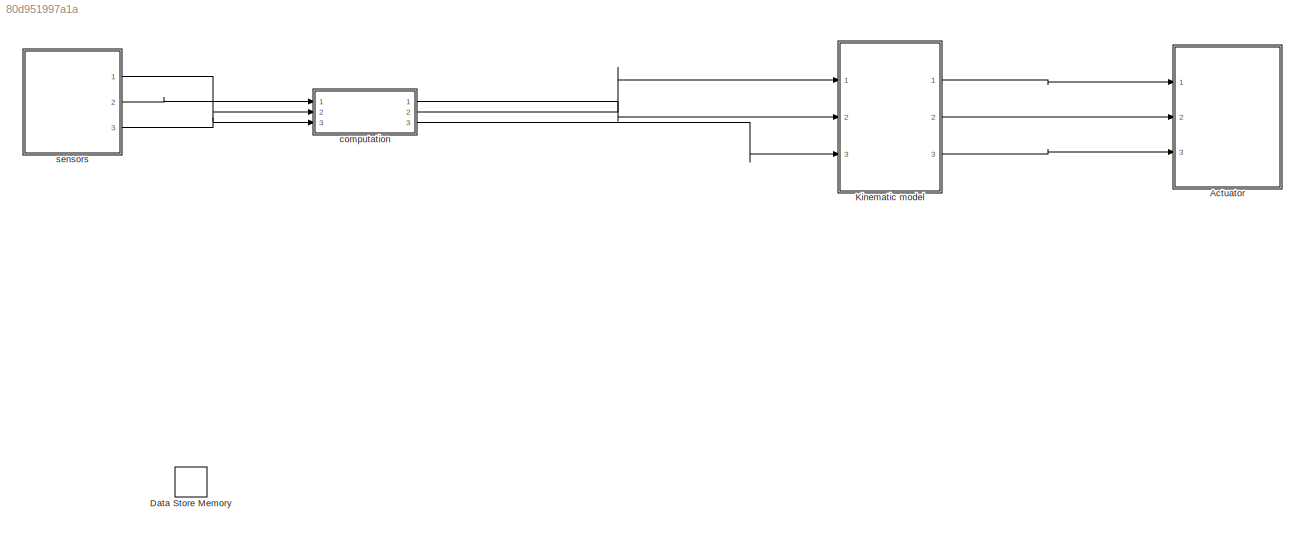
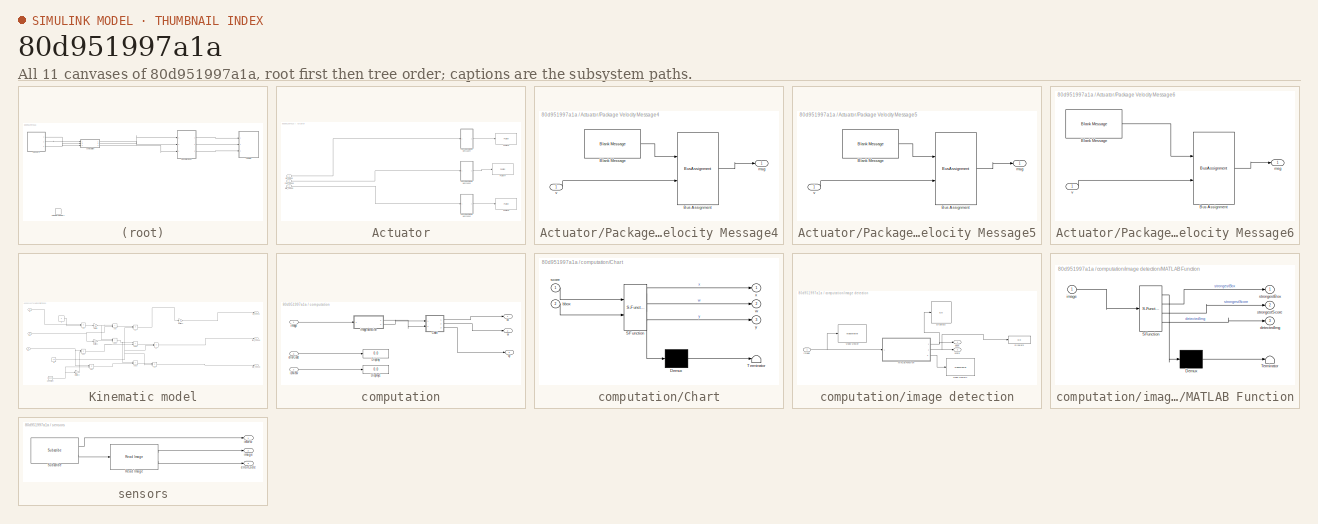
[diagram: thumbnail index - all 11 canvases of the model, root first then tree order]
MODEL slx_80d951997a1a
KIND model
CONFIG AbsTol = auto
CONFIG EnableMultiTasking = off
CONFIG FixedStep = auto
CONFIG MaxStep = auto
CONFIG MinStep = auto
CONFIG RelTol = 1e-3
CONFIG SampleTimeConstraint = Unconstrained
CONFIG Solver = FixedStepDiscrete
CONFIG SolverName = FixedStepDiscrete
CONFIG StartTime = 0.0
CONFIG StopTime = inf
WORKSPACE source: mxarray member
WORKSPACE SL_ROS_VariableLengthArrays_MaxSizes: object (value not decoded)
BLOCK [SubSystem] Actuator
  Ports = [3]
  RequestExecContextInheritance = off
BLOCK [SubSystem] Actuator/Package Velocity Message4
  Ports = [1, 1]
  RequestExecContextInheritance = off
BLOCK [Reference] Actuator/Package Velocity Message4/Blank Message  REF=robotlib/Blank Message
  Ports = [0, 1]
  SourceBlock = robotlib/Blank Message
  SourceProductBaseCode = RR
  SourceType = ROS Blank Message
BLOCK [BusAssignment] Actuator/Package Velocity Message4/Bus Assignment
  AssignedSignals = Data
  Ports = [2, 1]
BLOCK [Outport] Actuator/Package Velocity Message4/msg
  VectorParamsAs1DForOutWhenUnconnected = off
BLOCK [Inport] Actuator/Package Velocity Message4/v
BLOCK [SubSystem] Actuator/Package Velocity Message5
  Ports = [1, 1]
  RequestExecContextInheritance = off
BLOCK [Reference] Actuator/Package Velocity Message5/Blank Message  REF=robotlib/Blank Message
  Ports = [0, 1]
  SourceBlock = robotlib/Blank Message
  SourceProductBaseCode = RR
  SourceType = ROS Blank Message
BLOCK [BusAssignment] Actuator/Package Velocity Message5/Bus Assignment
  AssignedSignals = Data
  Ports = [2, 1]
BLOCK [Outport] Actuator/Package Velocity Message5/msg
  VectorParamsAs1DForOutWhenUnconnected = off
BLOCK [Inport] Actuator/Package Velocity Message5/v
BLOCK [SubSystem] Actuator/Package Velocity Message6
  Ports = [1, 1]
  RequestExecContextInheritance = off
BLOCK [Reference] Actuator/Package Velocity Message6/Blank Message  REF=robotlib/Blank Message
  Ports = [0, 1]
  SourceBlock = robotlib/Blank Message
  SourceProductBaseCode = RR
  SourceType = ROS Blank Message
BLOCK [BusAssignment] Actuator/Package Velocity Message6/Bus Assignment
  AssignedSignals = Data
  Ports = [2, 1]
BLOCK [Outport] Actuator/Package Velocity Message6/msg
  VectorParamsAs1DForOutWhenUnconnected = off
BLOCK [Inport] Actuator/Package Velocity Message6/v
BLOCK [Reference] Actuator/Publish4  REF=robotlib/Publish
  Ports = [1]
  SourceBlock = robotlib/Publish
  SourceProductBaseCode = RR
  SourceType = ROS Publish
BLOCK [Reference] Actuator/Publish5  REF=robotlib/Publish
  Ports = [1]
  SourceBlock = robotlib/Publish
  SourceProductBaseCode = RR
  SourceType = ROS Publish
BLOCK [Reference] Actuator/Publish6  REF=robotlib/Publish
  Ports = [1]
  SourceBlock = robotlib/Publish
  SourceProductBaseCode = RR
  SourceType = ROS Publish
BLOCK [Inport] Actuator/left2_speed
  Port = 3
BLOCK [Inport] Actuator/left_speed
BLOCK [Inport] Actuator/right_speed
  Port = 2
BLOCK [DataStoreMemory] Data Store Memory
  DataStoreName = sign
  ReadBeforeWriteMsg = warning
  ShowAdditionalParam = off
  WriteAfterReadMsg = warning
  WriteAfterWriteMsg = warning
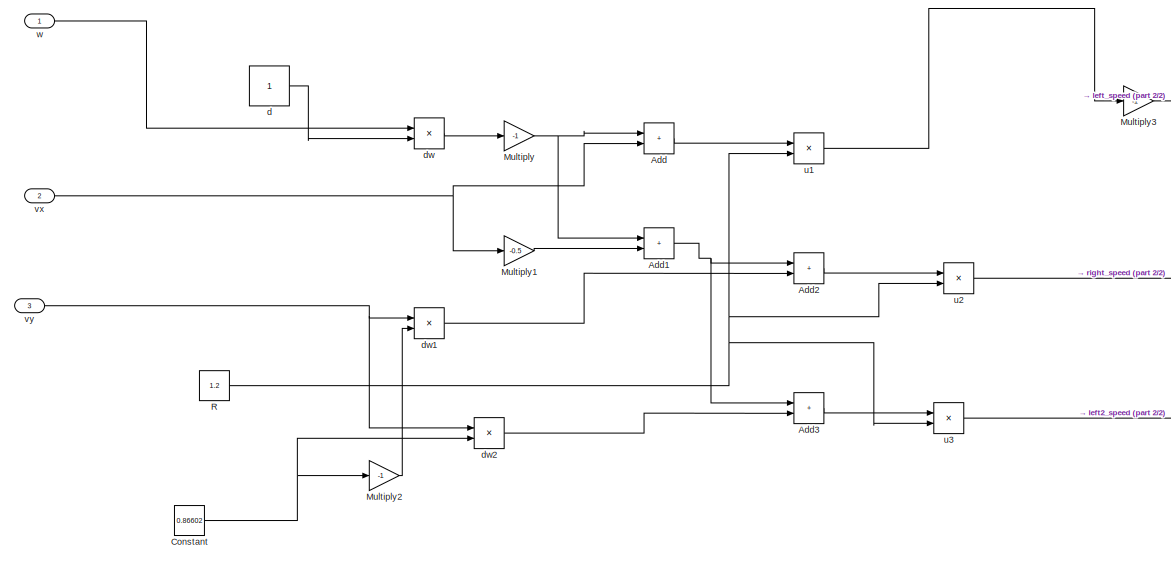
[diagram: Kinematic model - part 1/2, center side, full height]
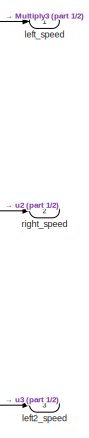
[diagram: Kinematic model - part 2/2, middle right region]
BLOCK [SubSystem] Kinematic model
  Ports = [3, 3]
  RequestExecContextInheritance = off
BLOCK [Sum] Kinematic model/Add
  IconShape = rectangular
  Ports = [2, 1]
BLOCK [Sum] Kinematic model/Add1
  IconShape = rectangular
  Ports = [2, 1]
BLOCK [Sum] Kinematic model/Add2
  IconShape = rectangular
  Ports = [2, 1]
BLOCK [Sum] Kinematic model/Add3
  IconShape = rectangular
  Ports = [2, 1]
BLOCK [Constant] Kinematic model/Constant
  Value = 0.86602
BLOCK [Gain] Kinematic model/Multiply
  Gain = -1
BLOCK [Gain] Kinematic model/Multiply1
  Gain = -0.5
BLOCK [Gain] Kinematic model/Multiply2
  Gain = -1
BLOCK [Gain] Kinematic model/Multiply3
  Gain = -1
BLOCK [Constant] Kinematic model/R
  Value = 1.2
BLOCK [Constant] Kinematic model/d
  SampleTime = -1
  VectorParams1D = off
BLOCK [Product] Kinematic model/dw
  Ports = [2, 1]
BLOCK [Product] Kinematic model/dw1
  Ports = [2, 1]
BLOCK [Product] Kinematic model/dw2
  Ports = [2, 1]
BLOCK [Outport] Kinematic model/left2_speed
  Port = 3
BLOCK [Outport] Kinematic model/left_speed
BLOCK [Outport] Kinematic model/right_speed
  Port = 2
BLOCK [Product] Kinematic model/u1
  Inputs = */
  Ports = [2, 1]
BLOCK [Product] Kinematic model/u2
  Inputs = */
  Ports = [2, 1]
BLOCK [Product] Kinematic model/u3
  Inputs = */
  Ports = [2, 1]
BLOCK [Inport] Kinematic model/vx
  Port = 2
BLOCK [Inport] Kinematic model/vy
  Port = 3
BLOCK [Inport] Kinematic model/w
BLOCK [SubSystem] computation
  Ports = [3, 3]
  RequestExecContextInheritance = off
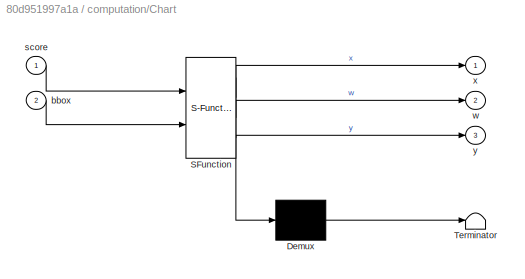
BLOCK [SubSystem] computation/Chart
  ErrorFcn = Stateflow.Translate.translate
  PermitHierarchicalResolution = ExplicitOnly
  Ports = [2, 3]
  RequestExecContextInheritance = off
  SFBlockType = Chart
  TreatAsAtomicUnit = on
BLOCK [Demux] computation/Chart/ Demux 
  Outputs = 1
  Ports = [1, 1]
BLOCK [S-Function] computation/Chart/ SFunction 
  EnableBusSupport = on
  FunctionName = sf_sfun
  PortCounts = [2 4]
  Ports = [2, 4]
  SFcnIsStateOwnerBlock = off
  SFunctionDeploymentMode = off
  Tag = Stateflow S-Function 3
BLOCK [Terminator] computation/Chart/ Terminator 
BLOCK [Inport] computation/Chart/bbox
  Port = 2
BLOCK [Inport] computation/Chart/score
BLOCK [Outport] computation/Chart/w
  Port = 2
BLOCK [Outport] computation/Chart/x
BLOCK [Outport] computation/Chart/y
  Port = 3
BLOCK [Display] computation/Display
  Decimation = 1
  Ports = [1]
BLOCK [Display] computation/Display1
  Decimation = 1
  Ports = [1]
BLOCK [Inport] computation/errorCode
  Port = 3
BLOCK [Inport] computation/image
BLOCK [SubSystem] computation/image detection
  Ports = [1, 2]
  RequestExecContextInheritance = off
BLOCK [Display] computation/image detection/Display2
  Decimation = 1
  Ports = [1]
BLOCK [Display] computation/image detection/Display3
  Decimation = 1
  Ports = [1]
BLOCK [SubSystem] computation/image detection/MATLAB Function
  ErrorFcn = Stateflow.Translate.translate
  PermitHierarchicalResolution = ExplicitOnly
  Ports = [1, 3]
  RequestExecContextInheritance = off
  SFBlockType = MATLAB Function
  TreatAsAtomicUnit = on
BLOCK [Demux] computation/image detection/MATLAB Function/ Demux 
  Outputs = 1
  Ports = [1, 1]
BLOCK [S-Function] computation/image detection/MATLAB Function/ SFunction 
  EnableBusSupport = on
  FunctionName = sf_sfun
  PortCounts = [1 4]
  Ports = [1, 4]
  SFcnIsStateOwnerBlock = off
  SFunctionDeploymentMode = off
  Tag = Stateflow S-Function 2
BLOCK [Terminator] computation/image detection/MATLAB Function/ Terminator 
BLOCK [Outport] computation/image detection/MATLAB Function/detectedImg
  Port = 3
BLOCK [Inport] computation/image detection/MATLAB Function/image
BLOCK [Outport] computation/image detection/MATLAB Function/strongestBox
BLOCK [Outport] computation/image detection/MATLAB Function/strongestScore
  Port = 2
BLOCK [VideoViewer] computation/image detection/Video Viewer
  FigPos = [191 900 448 283]
  Ports = [1]
  ScopeSpecificationString = vipscopes.VideoViewerScopeCfg('CurrentConfiguration', extmgr.ConfigurationSet(extmgr.Configuration('Core','General UI',true),extmgr.Configuration('Core','Source UI',true),extmgr.Configuration('Sources','WiredSimulink',true),extmgr.Configuration('Sources','File',false),extmgr.Configuration('Sources','Workspace',false),extmgr.Configuration('Sources','Streaming',false),extmgr.Configuration('Sources',...<+1712ch>
  colormapValue = gray(256)
BLOCK [VideoViewer] computation/image detection/Video Viewer1
  FigPos = [147 535 428 297]
  Ports = [1]
  ScopeSpecificationString = vipscopes.VideoViewerScopeCfg('CurrentConfiguration', extmgr.ConfigurationSet(extmgr.Configuration('Core','General UI',true),extmgr.Configuration('Core','Source UI',true),extmgr.Configuration('Sources','WiredSimulink',true),extmgr.Configuration('Sources','File',false),extmgr.Configuration('Sources','Workspace',false),extmgr.Configuration('Sources','Streaming',false),extmgr.Configuration('Sources',...<+1712ch>
  colormapValue = gray(256)
BLOCK [Outport] computation/image detection/bbox
BLOCK [Inport] computation/image detection/image
BLOCK [Outport] computation/image detection/score
  Port = 2
BLOCK [Inport] computation/isNiew
  Port = 2
BLOCK [Outport] computation/vx
BLOCK [Outport] computation/vy
  Port = 3
BLOCK [Outport] computation/w
  Port = 2
BLOCK [SubSystem] sensors
  Ports = [0, 3]
  RequestExecContextInheritance = off
BLOCK [Reference] sensors/Read Image  REF=robotlib/Read Image
  Ports = [1, 2]
  SourceBlock = robotlib/Read Image
  SourceProductBaseCode = RR
  SourceType = ros.slros.internal.block.ReadImage
BLOCK [Reference] sensors/Subscribe  REF=robotlib/Subscribe
  Ports = [0, 2]
  SourceBlock = robotlib/Subscribe
  SourceProductBaseCode = RR
  SourceType = ROS Subscribe
BLOCK [Outport] sensors/errorCode
  Port = 3
BLOCK [Outport] sensors/image
  Port = 2
BLOCK [Outport] sensors/isNew
LINE Actuator/Package Velocity Message4/Blank Message:1 -> Actuator/Package Velocity Message4/Bus Assignment:1
LINE Actuator/Package Velocity Message4/Bus Assignment:1 -> Actuator/Package Velocity Message4/msg:1
LINE Actuator/Package Velocity Message4/v:1 -> Actuator/Package Velocity Message4/Bus Assignment:2
LINE Actuator/Package Velocity Message4:1 -> Actuator/Publish5:1
LINE Actuator/Package Velocity Message5/Blank Message:1 -> Actuator/Package Velocity Message5/Bus Assignment:1
LINE Actuator/Package Velocity Message5/Bus Assignment:1 -> Actuator/Package Velocity Message5/msg:1
LINE Actuator/Package Velocity Message5/v:1 -> Actuator/Package Velocity Message5/Bus Assignment:2
LINE Actuator/Package Velocity Message5:1 -> Actuator/Publish4:1
LINE Actuator/Package Velocity Message6/Blank Message:1 -> Actuator/Package Velocity Message6/Bus Assignment:1
LINE Actuator/Package Velocity Message6/Bus Assignment:1 -> Actuator/Package Velocity Message6/msg:1
LINE Actuator/Package Velocity Message6/v:1 -> Actuator/Package Velocity Message6/Bus Assignment:2
LINE Actuator/Package Velocity Message6:1 -> Actuator/Publish6:1
LINE Actuator/left2_speed:1 -> Actuator/Package Velocity Message6:1
LINE Actuator/left_speed:1 -> Actuator/Package Velocity Message4:1
LINE Actuator/right_speed:1 -> Actuator/Package Velocity Message5:1
NET Kinematic model/Add1:1 -> Kinematic model/Add2:1, Kinematic model/Add3:1
LINE Kinematic model/Add2:1 -> Kinematic model/u2:1
LINE Kinematic model/Add3:1 -> Kinematic model/u3:1
LINE Kinematic model/Add:1 -> Kinematic model/u1:1
NET Kinematic model/Constant:1 -> Kinematic model/Multiply2:1, Kinematic model/dw2:2
LINE Kinematic model/Multiply1:1 -> Kinematic model/Add1:2
LINE Kinematic model/Multiply2:1 -> Kinematic model/dw1:2
LINE Kinematic model/Multiply3:1 -> Kinematic model/left_speed:1
NET Kinematic model/Multiply:1 -> Kinematic model/Add1:1, Kinematic model/Add:1
NET Kinematic model/R:1 -> Kinematic model/u1:2, Kinematic model/u2:2, Kinematic model/u3:2
LINE Kinematic model/d:1 -> Kinematic model/dw:2
LINE Kinematic model/dw1:1 -> Kinematic model/Add2:2
LINE Kinematic model/dw2:1 -> Kinematic model/Add3:2
LINE Kinematic model/dw:1 -> Kinematic model/Multiply:1
LINE Kinematic model/u1:1 -> Kinematic model/Multiply3:1
LINE Kinematic model/u2:1 -> Kinematic model/right_speed:1
LINE Kinematic model/u3:1 -> Kinematic model/left2_speed:1
NET Kinematic model/vx:1 -> Kinematic model/Add:2, Kinematic model/Multiply1:1
NET Kinematic model/vy:1 -> Kinematic model/dw1:1, Kinematic model/dw2:1
LINE Kinematic model/w:1 -> Kinematic model/dw:1
LINE Kinematic model:1 -> Actuator:1
LINE Kinematic model:2 -> Actuator:2
LINE Kinematic model:3 -> Actuator:3
LINE computation/Chart:1 -> computation/vx:1
LINE computation/Chart:2 -> computation/w:1
LINE computation/Chart:3 -> computation/vy:1
LINE computation/errorCode:1 -> computation/Display:1
NET computation/image detection/MATLAB Function:1 -> computation/image detection/Display2:1, computation/image detection/bbox:1
NET computation/image detection/MATLAB Function:2 -> computation/image detection/Display3:1, computation/image detection/score:1
LINE computation/image detection/MATLAB Function:3 -> computation/image detection/Video Viewer1:1
NET computation/image detection/image:1 -> computation/image detection/MATLAB Function:1, computation/image detection/Video Viewer:1
LINE computation/image detection:1 -> computation/Chart:2
LINE computation/image detection:2 -> computation/Chart:1
LINE computation/image:1 -> computation/image detection:1
LINE computation/isNiew:1 -> computation/Display1:1
LINE computation:1 -> Kinematic model:2
LINE computation:2 -> Kinematic model:1
LINE computation:3 -> Kinematic model:3
LINE sensors/Read Image:1 -> sensors/image:1
LINE sensors/Read Image:2 -> sensors/errorCode:1
LINE sensors/Subscribe:1 -> sensors/isNew:1
LINE sensors/Subscribe:2 -> sensors/Read Image:1
LINE sensors:1 -> computation:2
LINE sensors:2 -> computation:1
LINE sensors:3 -> computation:3
note: NET lines group one-source signal fan-out (src -> all destinations, sorted); 1:1 wires keep LINE
CHART computation/image detection/MATLAB Function states=1 transitions=1
  STATE_LABEL 'eML_blk_kernel()'
  STATE_LABEL "SCRIPT:\nfunction [strongestBox, strongestScore, detectedImg] = yolov2_detect(image)\nstrongestBox = zeros(1, 4);\nstrongestScore = 0;\n\nimageResized = imresize(image,[224, 224]);\ndetectedImg = imageResized;\npersistent yolov2Obj;\n\nif isempty(yolov2Obj)\n    yolov2Obj = coder.loadDeepLearningNetwork('yoloResNet50_det.mat');\nend\n\n[bboxes, scores] = yolov2Obj.detect(imageResized,'Threshold',0.1);\n\nif(~ise...<+383ch>"
CHART computation/Chart states=3 transitions=3
  STATE_LABEL 'no_ball\nw=0.8;\nx=0;\ny=0;\n'
  STATE_LABEL 'ball_in_middle\nif bbox(1) + bbox(3)/2 < 107\n    w=1  * 0.3;;\nelseif bbox(1) + bbox(3)/2 > 117\n    w=-1 * 0.3;\nend\nx=0;\ny = 0;'
  STATE_LABEL 'move_to_ball\nx=5;\ny=.86*5;'
CHART  states=0 transitions=0
CHART  states=0 transitions=0
